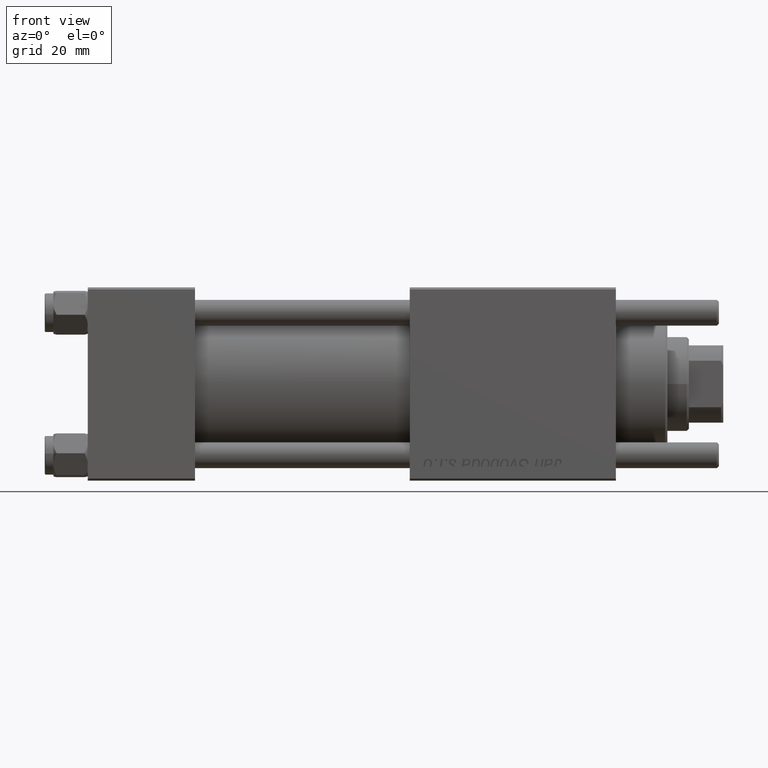
[diagram: clean part render]
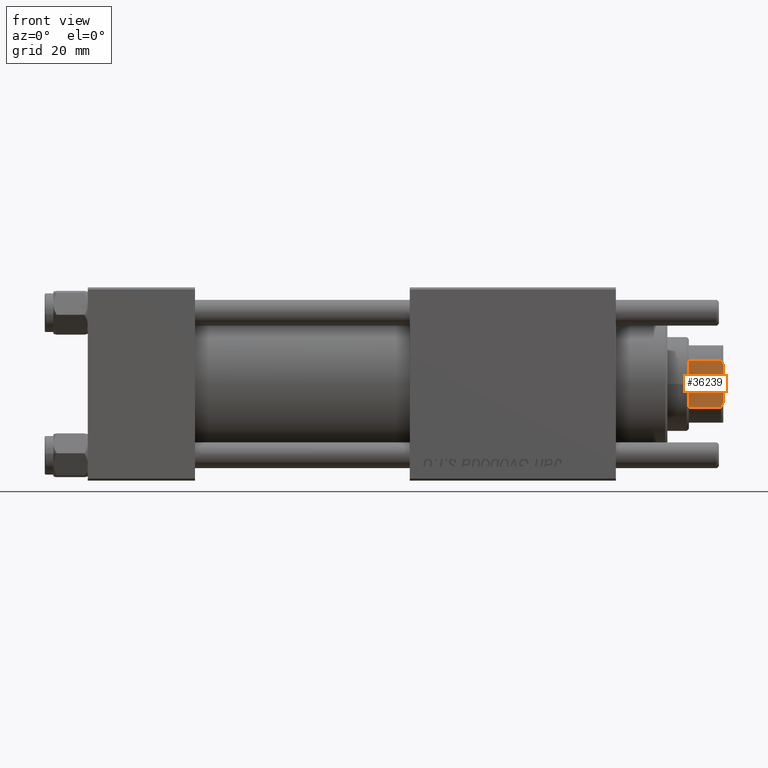
[diagram: same view with one face highlighted and labeled with its STEP entity id]
A machine part, front view. The second image highlights one B-rep face of the part: STEP entity #36239.
In plain terms, the highlighted planar face has unit normal (0, 1, 0).
Its self-contained STEP definition (entity closure, byte-faithful):
#1086 = ORIENTED_EDGE ( 'NONE', *, *, #52796, .T. ) ;
#1636 = CARTESIAN_POINT ( 'NONE',  ( 8.999999999999996447, 8.999999999999998224, 115.0000000000000000 ) ) ;
#1646 = ORIENTED_EDGE ( 'NONE', *, *, #6248, .F. ) ;
#6248 = EDGE_CURVE ( 'NONE', #22608, #17129, #26655, .T. ) ;
#7548 = CARTESIAN_POINT ( 'NONE',  ( 9.000000000000000000, -4.714305797500252027, 122.8450817439748448 ) ) ;
#7833 = DIRECTION ( 'NONE',  ( -1.000000000000000000, -1.927470528863119049E-16, 0.000000000000000000 ) ) ;
#7849 = ORIENTED_EDGE ( 'NONE', *, *, #56346, .T. ) ;
#8158 = LINE ( 'NONE', #33998, #24092 ) ;
#8524 = CARTESIAN_POINT ( 'NONE',  ( 8.999999999999998224, 4.714305797500204065, 122.8450817439748306 ) ) ;
#9413 = DIRECTION ( 'NONE',  ( -0.000000000000000000, -0.000000000000000000, 1.000000000000000000 ) ) ;
#11381 = AXIS2_PLACEMENT_3D ( 'NONE', #29083, #7833, #43151 ) ;
#11436 = ORIENTED_EDGE ( 'NONE', *, *, #50019, .F. ) ;
#12410 = PLANE ( 'NONE',  #11381 ) ;
#12788 = B_SPLINE_CURVE_WITH_KNOTS ( 'NONE', 3,
 ( #26015, #12812, #8524, #30344 ),
 .UNSPECIFIED., .F., .F.,
 ( 4, 4 ),
 ( 0.000000000000000000, 0.001162453897363273890 ),
 .UNSPECIFIED. ) ;
#12812 = CARTESIAN_POINT ( 'NONE',  ( 8.999999999999996447, 5.063687070142427693, 122.6775166608138932 ) ) ;
#12954 = CARTESIAN_POINT ( 'NONE',  ( 8.999999999999996447, -5.408326913195990571, 115.0000000000000284 ) ) ;
#14079 = VECTOR ( 'NONE', #9413, 1000.000000000000000 ) ;
#14462 = VERTEX_POINT ( 'NONE', #30138 ) ;
#16690 = FACE_OUTER_BOUND ( 'NONE', #30455, .T. ) ;
#17129 = VERTEX_POINT ( 'NONE', #34261 ) ;
#22608 = VERTEX_POINT ( 'NONE', #12954 ) ;
#22763 = VECTOR ( 'NONE', #44188, 1000.000000000000000 ) ;
#23726 = ORIENTED_EDGE ( 'NONE', *, *, #32110, .T. ) ;
#23795 = VERTEX_POINT ( 'NONE', #44506 ) ;
#24092 = VECTOR ( 'NONE', #50938, 1000.000000000000000 ) ;
#24545 = DIRECTION ( 'NONE',  ( -1.927470528863119049E-16, 1.000000000000000000, -0.000000000000000000 ) ) ;
#26015 = CARTESIAN_POINT ( 'NONE',  ( 8.999999999999996447, 5.408326913195991459, 122.4999999999999716 ) ) ;
#26655 = LINE ( 'NONE', #43908, #22763 ) ;
#28328 = VERTEX_POINT ( 'NONE', #55289 ) ;
#28357 = EDGE_CURVE ( 'NONE', #22608, #28328, #32639, .T. ) ;
#28409 = B_SPLINE_CURVE_WITH_KNOTS ( 'NONE', 3,
 ( #38281, #7548, #55792, #37153 ),
 .UNSPECIFIED., .F., .F.,
 ( 4, 4 ),
 ( 0.000000000000000000, 0.001162453897363195177 ),
 .UNSPECIFIED. ) ;
#29083 = CARTESIAN_POINT ( 'NONE',  ( 8.999999999999996447, 8.999999999999998224, 123.0000000000000000 ) ) ;
#30138 = CARTESIAN_POINT ( 'NONE',  ( 8.999999999999998224, -4.358898943540672200, 123.0000000000000000 ) ) ;
#30344 = CARTESIAN_POINT ( 'NONE',  ( 8.999999999999998224, 4.358898943540600257, 123.0000000000000000 ) ) ;
#30455 = EDGE_LOOP ( 'NONE', ( #1086, #7849, #11436, #23726, #1646, #49532 ) ) ;
#32110 = EDGE_CURVE ( 'NONE', #14462, #17129, #28409, .T. ) ;
#32639 = LINE ( 'NONE', #1636, #37250 ) ;
#33998 = CARTESIAN_POINT ( 'NONE',  ( 8.999999999999996447, 8.999999999999998224, 123.0000000000000000 ) ) ;
#34261 = CARTESIAN_POINT ( 'NONE',  ( 8.999999999999996447, -5.408326913195990571, 122.5000000000000000 ) ) ;
#35548 = LINE ( 'NONE', #49021, #14079 ) ;
#36239 = ADVANCED_FACE ( 'NONE', ( #16690 ), #12410, .F. ) ;
#37153 = CARTESIAN_POINT ( 'NONE',  ( 8.999999999999996447, -5.408326913195990571, 122.5000000000000000 ) ) ;
#37250 = VECTOR ( 'NONE', #24545, 1000.000000000000000 ) ;
#38281 = CARTESIAN_POINT ( 'NONE',  ( 8.999999999999998224, -4.358898943540672200, 123.0000000000000000 ) ) ;
#38840 = VERTEX_POINT ( 'NONE', #55521 ) ;
#43151 = DIRECTION ( 'NONE',  ( 1.927470528863119049E-16, -1.000000000000000000, 0.000000000000000000 ) ) ;
#43908 = CARTESIAN_POINT ( 'NONE',  ( 8.999999999999996447, -5.408326913195990571, -0.001000000000001000089 ) ) ;
#44188 = DIRECTION ( 'NONE',  ( -0.000000000000000000, -0.000000000000000000, 1.000000000000000000 ) ) ;
#44506 = CARTESIAN_POINT ( 'NONE',  ( 8.999999999999998224, 4.358898943540600257, 123.0000000000000000 ) ) ;
#49021 = CARTESIAN_POINT ( 'NONE',  ( 8.999999999999996447, 5.408326913195991459, -0.001000000000001000089 ) ) ;
#49532 = ORIENTED_EDGE ( 'NONE', *, *, #28357, .T. ) ;
#50019 = EDGE_CURVE ( 'NONE', #14462, #23795, #8158, .T. ) ;
#50938 = DIRECTION ( 'NONE',  ( -1.927470528863119049E-16, 1.000000000000000000, -0.000000000000000000 ) ) ;
#52796 = EDGE_CURVE ( 'NONE', #28328, #38840, #35548, .T. ) ;
#55289 = CARTESIAN_POINT ( 'NONE',  ( 8.999999999999996447, 5.408326913195991459, 115.0000000000000284 ) ) ;
#55521 = CARTESIAN_POINT ( 'NONE',  ( 8.999999999999996447, 5.408326913195991459, 122.4999999999999716 ) ) ;
#55792 = CARTESIAN_POINT ( 'NONE',  ( 9.000000000000000000, -5.063687070142444568, 122.6775166608139216 ) ) ;
#56346 = EDGE_CURVE ( 'NONE', #38840, #23795, #12788, .T. ) ;